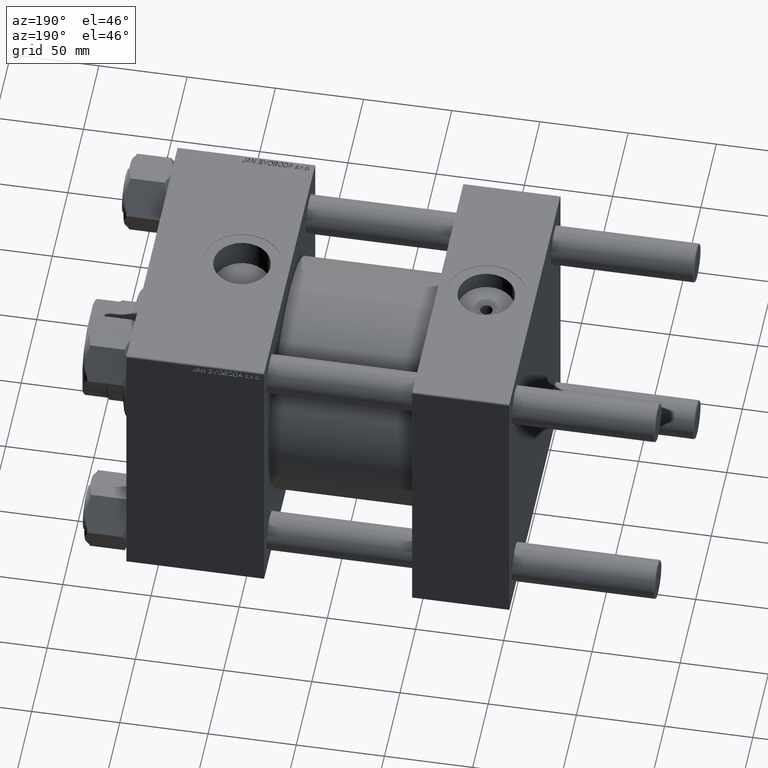
[diagram: clean part render]
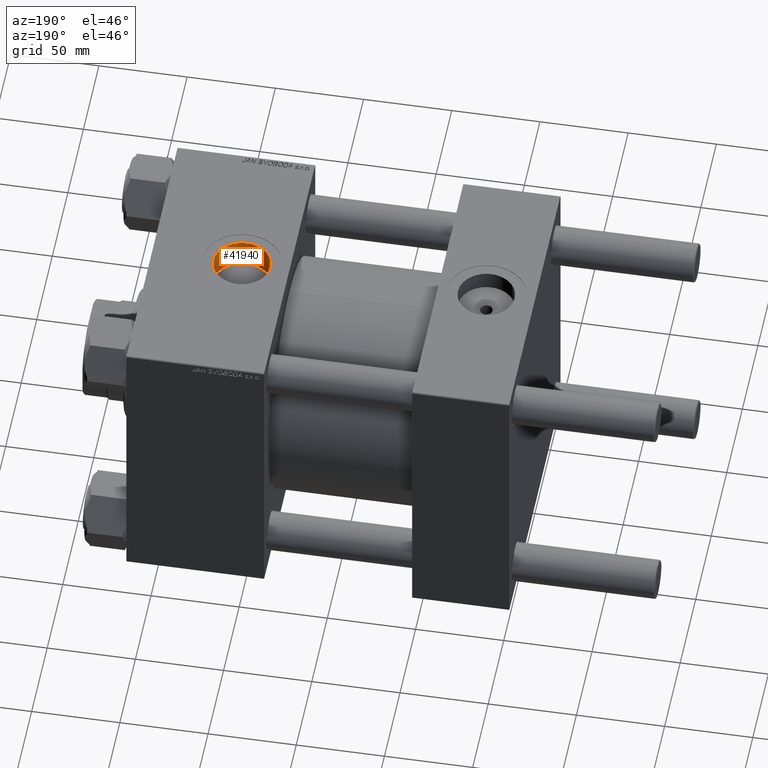
[diagram: same view with one face highlighted and labeled with its STEP entity id]
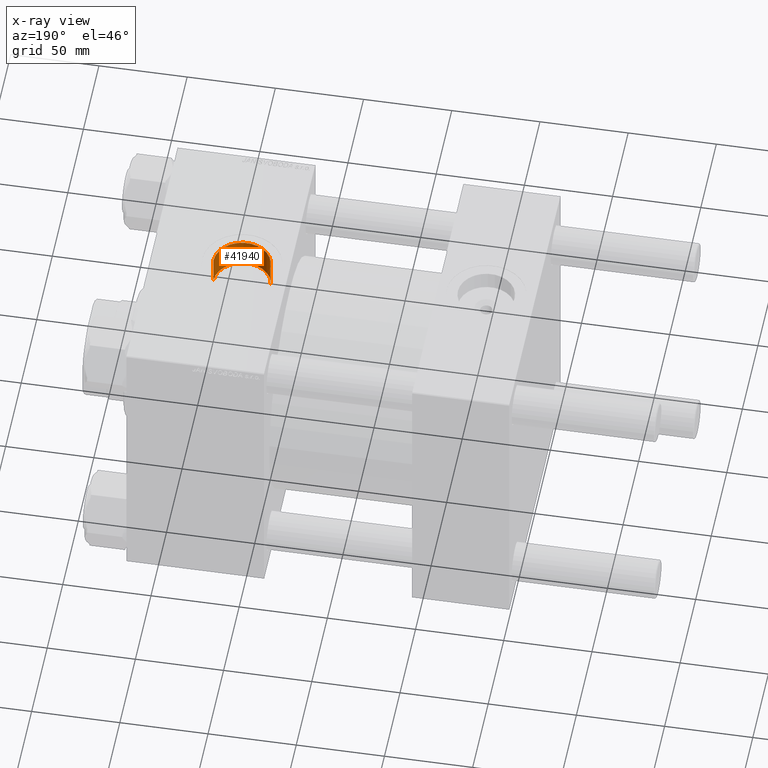
[diagram: x-ray of the same camera — body ghosted, the highlighted face saturated]
A machine part, auxiliary view. The second image highlights one B-rep face of the part: STEP entity #41940.
The next image is the same camera in x-ray: the body ghosted, the highlighted face saturated — about 0% of this face is hidden behind the body in this view.
In plain terms, the highlighted cylindrical surface (edge-blend (fillet) strip) has radius 16.12 mm, axis along (0, 0, -1).
Its self-contained STEP definition (entity closure, byte-faithful):
#241 = VECTOR ( 'NONE', #39223, 1000.000000000000000 ) ;
#286 = ORIENTED_EDGE ( 'NONE', *, *, #31548, .F. ) ;
#921 = VERTEX_POINT ( 'NONE', #47719 ) ;
#5172 = DIRECTION ( 'NONE',  ( 1.000000000000000000, 0.000000000000000000, 0.000000000000000000 ) ) ;
#5986 = CARTESIAN_POINT ( 'NONE',  ( 165.9999999999999716, -1.387778780781445676E-14, 66.09999999999998010 ) ) ;
#7019 = DIRECTION ( 'NONE',  ( 0.000000000000000000, 0.000000000000000000, -1.000000000000000000 ) ) ;
#9252 = DIRECTION ( 'NONE',  ( -0.000000000000000000, -0.000000000000000000, -1.000000000000000000 ) ) ;
#9892 = CARTESIAN_POINT ( 'NONE',  ( 182.1199999999999761, -1.190365716758892667E-14, 66.09999999999998010 ) ) ;
#9934 = EDGE_CURVE ( 'NONE', #35294, #921, #25889, .T. ) ;
#10321 = VERTEX_POINT ( 'NONE', #9892 ) ;
#11086 = DIRECTION ( 'NONE',  ( -1.000000000000000000, 0.000000000000000000, 0.000000000000000000 ) ) ;
#13873 = ORIENTED_EDGE ( 'NONE', *, *, #40625, .T. ) ;
#15165 = CYLINDRICAL_SURFACE ( 'NONE', #24710, 16.11999999999999389 ) ;
#15177 = CARTESIAN_POINT ( 'NONE',  ( 149.8799999999999955, -1.387778780781445676E-14, 82.29999999999998295 ) ) ;
#16514 = LINE ( 'NONE', #47361, #241 ) ;
#17982 = CARTESIAN_POINT ( 'NONE',  ( 149.8799999999999955, -1.387778780781445676E-14, 105.2999999999999829 ) ) ;
#22310 = EDGE_LOOP ( 'NONE', ( #47588, #13873, #286, #34336 ) ) ;
#22568 = FACE_OUTER_BOUND ( 'NONE', #22310, .T. ) ;
#22899 = CARTESIAN_POINT ( 'NONE',  ( 182.1199999999999761, -1.190365716758892667E-14, 82.29999999999998295 ) ) ;
#23056 = CARTESIAN_POINT ( 'NONE',  ( 165.9999999999999716, -1.387778780781445676E-14, 105.2999999999999829 ) ) ;
#23261 = VECTOR ( 'NONE', #7019, 1000.000000000000000 ) ;
#23525 = EDGE_CURVE ( 'NONE', #36210, #35294, #38110, .T. ) ;
#23708 = CIRCLE ( 'NONE', #40809, 16.11999999999999389 ) ;
#24710 = AXIS2_PLACEMENT_3D ( 'NONE', #23056, #46017, #11086 ) ;
#25889 = LINE ( 'NONE', #17982, #23261 ) ;
#28135 = CARTESIAN_POINT ( 'NONE',  ( 165.9999999999999716, -1.387778780781445676E-14, 82.29999999999998295 ) ) ;
#28945 = DIRECTION ( 'NONE',  ( 0.000000000000000000, 0.000000000000000000, 1.000000000000000000 ) ) ;
#31548 = EDGE_CURVE ( 'NONE', #921, #10321, #23708, .T. ) ;
#34336 = ORIENTED_EDGE ( 'NONE', *, *, #9934, .F. ) ;
#35294 = VERTEX_POINT ( 'NONE', #15177 ) ;
#36210 = VERTEX_POINT ( 'NONE', #22899 ) ;
#38110 = CIRCLE ( 'NONE', #47871, 16.11999999999999389 ) ;
#39223 = DIRECTION ( 'NONE',  ( 0.000000000000000000, 0.000000000000000000, -1.000000000000000000 ) ) ;
#40625 = EDGE_CURVE ( 'NONE', #36210, #10321, #16514, .T. ) ;
#40662 = DIRECTION ( 'NONE',  ( 1.000000000000000000, 0.000000000000000000, 0.000000000000000000 ) ) ;
#40809 = AXIS2_PLACEMENT_3D ( 'NONE', #5986, #28945, #40662 ) ;
#41940 = ADVANCED_FACE ( 'NONE', ( #22568 ), #15165, .F. ) ;
#46017 = DIRECTION ( 'NONE',  ( 0.000000000000000000, 0.000000000000000000, -1.000000000000000000 ) ) ;
#47361 = CARTESIAN_POINT ( 'NONE',  ( 182.1199999999999761, -1.190365716758892509E-14, 105.2999999999999829 ) ) ;
#47588 = ORIENTED_EDGE ( 'NONE', *, *, #23525, .F. ) ;
#47719 = CARTESIAN_POINT ( 'NONE',  ( 149.8799999999999955, -1.387778780781445676E-14, 66.09999999999998010 ) ) ;
#47871 = AXIS2_PLACEMENT_3D ( 'NONE', #28135, #9252, #5172 ) ;